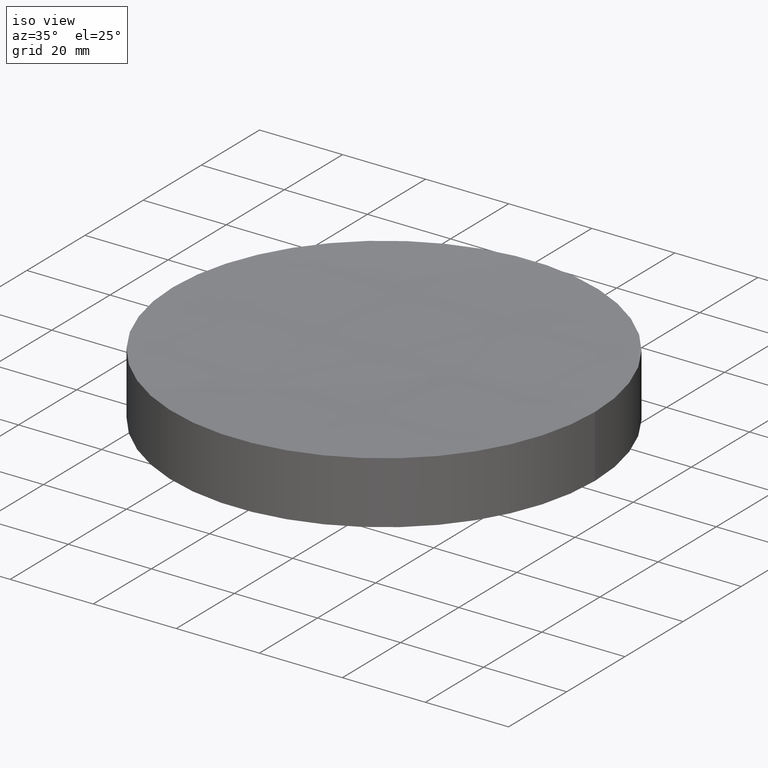
[diagram: clean part render]
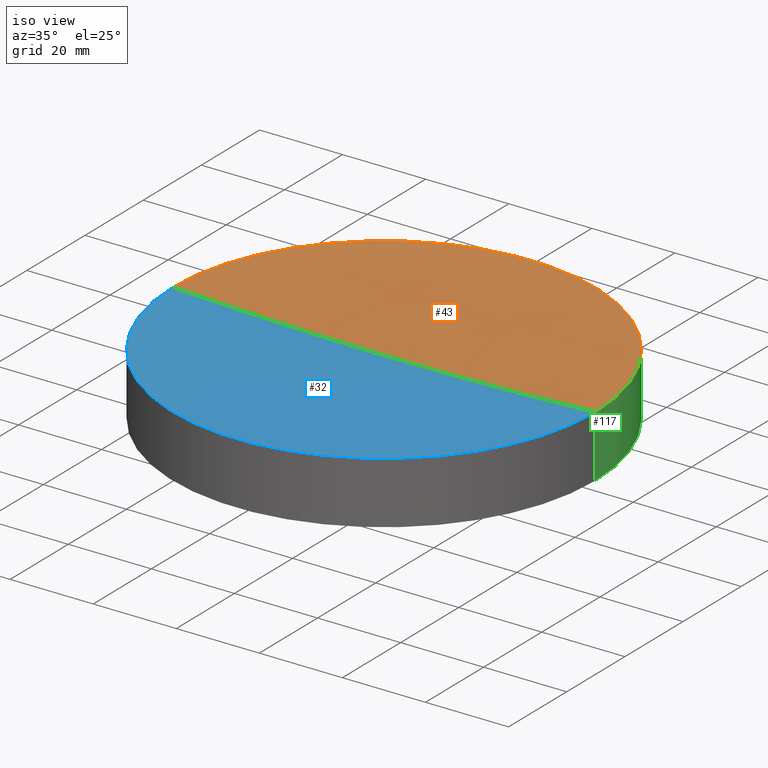
[diagram: same view with three faces highlighted in distinct colors, each labeled with its STEP entity id]
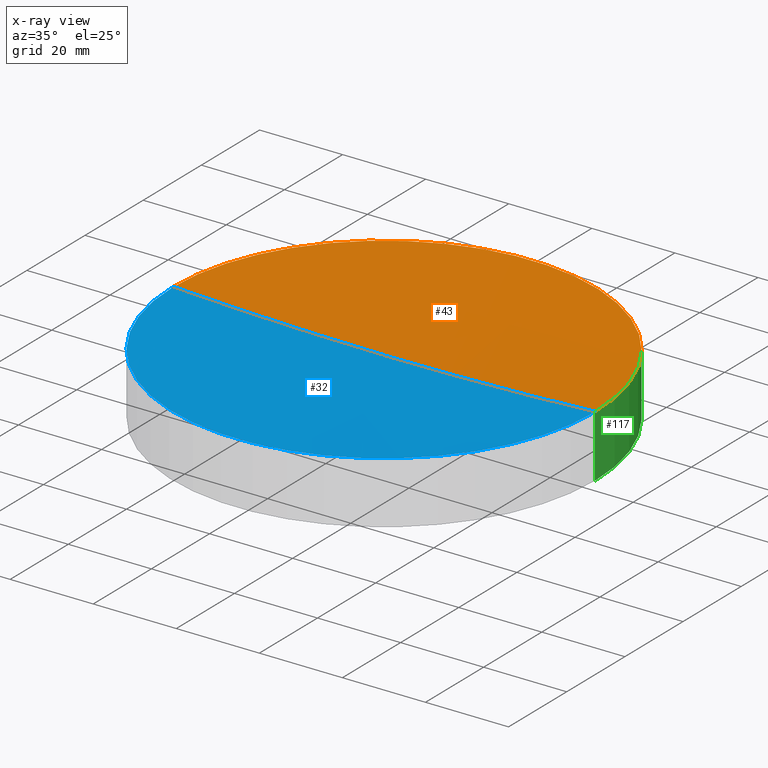
[diagram: x-ray of the same camera — body ghosted, the three highlighted faces saturated]
A machine part, iso view with three faces highlighted in distinct colors.
The next image is the same camera in x-ray (body ghosted, the three faces saturated) — at least one of them is partly hidden behind the body in this view.
Their STEP definitions:

[orange] entity #43 — the highlighted spherical surface has radius 1000 mm.
#9 = VERTEX_POINT ( 'NONE', #103 ) ;
#24 = ORIENTED_EDGE ( 'NONE', *, *, #34, .F. ) ;
#25 = DIRECTION ( 'NONE',  ( 1.000000000000000000, 0.000000000000000000, 0.000000000000000000 ) ) ;
#27 = CARTESIAN_POINT ( 'NONE',  ( 1.249000902703301108E-13, 0.000000000000000000, 15.00000000000001421 ) ) ;
#29 = DIRECTION ( 'NONE',  ( 0.000000000000000000, 0.000000000000000000, 1.000000000000000000 ) ) ;
#31 = CARTESIAN_POINT ( 'NONE',  ( 50.80000000000143956, 6.221205739668731224E-15, 15.00000000000001421 ) ) ;
#34 = EDGE_CURVE ( 'NONE', #9, #132, #112, .T. ) ;
#43 = ADVANCED_FACE ( 'NONE', ( #88 ), #178, .F. ) ;
#48 = AXIS2_PLACEMENT_3D ( 'NONE', #158, #135, #73 ) ;
#70 = ORIENTED_EDGE ( 'NONE', *, *, #188, .F. ) ;
#72 = ORIENTED_EDGE ( 'NONE', *, *, #140, .T. ) ;
#73 = DIRECTION ( 'NONE',  ( 1.000000000000000000, 0.000000000000000000, 0.000000000000000000 ) ) ;
#80 = AXIS2_PLACEMENT_3D ( 'NONE', #27, #195, #25 ) ;
#88 = FACE_OUTER_BOUND ( 'NONE', #179, .T. ) ;
#92 = DIRECTION ( 'NONE',  ( 0.000000000000000000, 1.000000000000000000, -0.000000000000000000 ) ) ;
#96 = CARTESIAN_POINT ( 'NONE',  ( 1.861324302276977606E-13, 0.000000000000000000, 13.70884646126968676 ) ) ;
#103 = CARTESIAN_POINT ( 'NONE',  ( -50.80000000000119087, 0.000000000000000000, 15.00000000000001421 ) ) ;
#104 = CARTESIAN_POINT ( 'NONE',  ( 1.249000902703301108E-13, 0.000000000000000000, 1013.708846461269559 ) ) ;
#107 = CIRCLE ( 'NONE', #126, 999.9999999999997726 ) ;
#112 = CIRCLE ( 'NONE', #80, 50.80000000000131877 ) ;
#113 = AXIS2_PLACEMENT_3D ( 'NONE', #183, #167, #199 ) ;
#118 = VERTEX_POINT ( 'NONE', #96 ) ;
#126 = AXIS2_PLACEMENT_3D ( 'NONE', #104, #92, #29 ) ;
#132 = VERTEX_POINT ( 'NONE', #31 ) ;
#135 = DIRECTION ( 'NONE',  ( 0.000000000000000000, -1.000000000000000000, -0.000000000000000000 ) ) ;
#140 = EDGE_CURVE ( 'NONE', #9, #118, #201, .T. ) ;
#158 = CARTESIAN_POINT ( 'NONE',  ( 1.249000902703301108E-13, 0.000000000000000000, 1013.708846461269559 ) ) ;
#167 = DIRECTION ( 'NONE',  ( 1.224646799147353207E-16, -1.000000000000000000, 0.000000000000000000 ) ) ;
#178 = SPHERICAL_SURFACE ( 'NONE', #48, 999.9999999999998863 ) ;
#179 = EDGE_LOOP ( 'NONE', ( #24, #72, #70 ) ) ;
#183 = CARTESIAN_POINT ( 'NONE',  ( 1.249000902703301108E-13, 0.000000000000000000, 1013.708846461269559 ) ) ;
#188 = EDGE_CURVE ( 'NONE', #132, #118, #107, .T. ) ;
#195 = DIRECTION ( 'NONE',  ( -0.000000000000000000, -0.000000000000000000, -1.000000000000000000 ) ) ;
#199 = DIRECTION ( 'NONE',  ( 1.000000000000000000, 1.224646799147353207E-16, 0.000000000000000000 ) ) ;
#201 = CIRCLE ( 'NONE', #113, 999.9999999999998863 ) ;

[blue] entity #32 — the highlighted spherical surface has radius 1000 mm.
#9 = VERTEX_POINT ( 'NONE', #103 ) ;
#10 = ORIENTED_EDGE ( 'NONE', *, *, #140, .F. ) ;
#11 = CARTESIAN_POINT ( 'NONE',  ( 1.249000902703301108E-13, 0.000000000000000000, 15.00000000000001421 ) ) ;
#29 = DIRECTION ( 'NONE',  ( 0.000000000000000000, 0.000000000000000000, 1.000000000000000000 ) ) ;
#31 = CARTESIAN_POINT ( 'NONE',  ( 50.80000000000143956, 6.221205739668731224E-15, 15.00000000000001421 ) ) ;
#32 = ADVANCED_FACE ( 'NONE', ( #177 ), #181, .F. ) ;
#42 = ORIENTED_EDGE ( 'NONE', *, *, #188, .T. ) ;
#46 = CARTESIAN_POINT ( 'NONE',  ( 1.249000902703301108E-13, 0.000000000000000000, 1013.708846461269559 ) ) ;
#47 = DIRECTION ( 'NONE',  ( -0.000000000000000000, -0.000000000000000000, -1.000000000000000000 ) ) ;
#55 = CIRCLE ( 'NONE', #162, 50.80000000000131877 ) ;
#92 = DIRECTION ( 'NONE',  ( 0.000000000000000000, 1.000000000000000000, -0.000000000000000000 ) ) ;
#96 = CARTESIAN_POINT ( 'NONE',  ( 1.861324302276977606E-13, 0.000000000000000000, 13.70884646126968676 ) ) ;
#103 = CARTESIAN_POINT ( 'NONE',  ( -50.80000000000119087, 0.000000000000000000, 15.00000000000001421 ) ) ;
#104 = CARTESIAN_POINT ( 'NONE',  ( 1.249000902703301108E-13, 0.000000000000000000, 1013.708846461269559 ) ) ;
#107 = CIRCLE ( 'NONE', #126, 999.9999999999997726 ) ;
#113 = AXIS2_PLACEMENT_3D ( 'NONE', #183, #167, #199 ) ;
#116 = ORIENTED_EDGE ( 'NONE', *, *, #168, .F. ) ;
#118 = VERTEX_POINT ( 'NONE', #96 ) ;
#120 = DIRECTION ( 'NONE',  ( 1.000000000000000000, 0.000000000000000000, 0.000000000000000000 ) ) ;
#126 = AXIS2_PLACEMENT_3D ( 'NONE', #104, #92, #29 ) ;
#132 = VERTEX_POINT ( 'NONE', #31 ) ;
#140 = EDGE_CURVE ( 'NONE', #9, #118, #201, .T. ) ;
#144 = DIRECTION ( 'NONE',  ( 0.000000000000000000, -1.000000000000000000, -0.000000000000000000 ) ) ;
#145 = AXIS2_PLACEMENT_3D ( 'NONE', #46, #144, #120 ) ;
#162 = AXIS2_PLACEMENT_3D ( 'NONE', #11, #47, #198 ) ;
#167 = DIRECTION ( 'NONE',  ( 1.224646799147353207E-16, -1.000000000000000000, 0.000000000000000000 ) ) ;
#168 = EDGE_CURVE ( 'NONE', #132, #9, #55, .T. ) ;
#176 = EDGE_LOOP ( 'NONE', ( #10, #116, #42 ) ) ;
#177 = FACE_OUTER_BOUND ( 'NONE', #176, .T. ) ;
#181 = SPHERICAL_SURFACE ( 'NONE', #145, 999.9999999999998863 ) ;
#183 = CARTESIAN_POINT ( 'NONE',  ( 1.249000902703301108E-13, 0.000000000000000000, 1013.708846461269559 ) ) ;
#188 = EDGE_CURVE ( 'NONE', #132, #118, #107, .T. ) ;
#198 = DIRECTION ( 'NONE',  ( 1.000000000000000000, 0.000000000000000000, 0.000000000000000000 ) ) ;
#199 = DIRECTION ( 'NONE',  ( 1.000000000000000000, 1.224646799147353207E-16, 0.000000000000000000 ) ) ;
#201 = CIRCLE ( 'NONE', #113, 999.9999999999998863 ) ;

[green] entity #117 — the highlighted cylindrical surface (partial cylindrical patch) has radius 50.8 mm, axis along (-0, -0, -1).
#8 = ORIENTED_EDGE ( 'NONE', *, *, #50, .T. ) ;
#9 = VERTEX_POINT ( 'NONE', #103 ) ;
#14 = CYLINDRICAL_SURFACE ( 'NONE', #78, 50.79999999999999716 ) ;
#16 = CARTESIAN_POINT ( 'NONE',  ( -50.79999999999999716, 0.000000000000000000, 15.00000000000000000 ) ) ;
#25 = DIRECTION ( 'NONE',  ( 1.000000000000000000, 0.000000000000000000, 0.000000000000000000 ) ) ;
#27 = CARTESIAN_POINT ( 'NONE',  ( 1.249000902703301108E-13, 0.000000000000000000, 15.00000000000001421 ) ) ;
#28 = ORIENTED_EDGE ( 'NONE', *, *, #84, .T. ) ;
#31 = CARTESIAN_POINT ( 'NONE',  ( 50.80000000000143956, 6.221205739668731224E-15, 15.00000000000001421 ) ) ;
#33 = CARTESIAN_POINT ( 'NONE',  ( 0.000000000000000000, 0.000000000000000000, 0.000000000000000000 ) ) ;
#34 = EDGE_CURVE ( 'NONE', #9, #132, #112, .T. ) ;
#41 = ORIENTED_EDGE ( 'NONE', *, *, #34, .T. ) ;
#50 = EDGE_CURVE ( 'NONE', #132, #133, #76, .T. ) ;
#61 = ORIENTED_EDGE ( 'NONE', *, *, #67, .F. ) ;
#64 = DIRECTION ( 'NONE',  ( -1.000000000000000000, 0.000000000000000000, 0.000000000000000000 ) ) ;
#67 = EDGE_CURVE ( 'NONE', #9, #160, #94, .T. ) ;
#75 = EDGE_LOOP ( 'NONE', ( #41, #8, #28, #61 ) ) ;
#76 = LINE ( 'NONE', #134, #193 ) ;
#78 = AXIS2_PLACEMENT_3D ( 'NONE', #108, #169, #64 ) ;
#80 = AXIS2_PLACEMENT_3D ( 'NONE', #27, #195, #25 ) ;
#84 = EDGE_CURVE ( 'NONE', #133, #160, #172, .T. ) ;
#94 = LINE ( 'NONE', #16, #109 ) ;
#97 = DIRECTION ( 'NONE',  ( -0.000000000000000000, -0.000000000000000000, -1.000000000000000000 ) ) ;
#103 = CARTESIAN_POINT ( 'NONE',  ( -50.80000000000119087, 0.000000000000000000, 15.00000000000001421 ) ) ;
#106 = CARTESIAN_POINT ( 'NONE',  ( 50.79999999999999716, 6.221205739668553730E-15, 0.000000000000000000 ) ) ;
#108 = CARTESIAN_POINT ( 'NONE',  ( 0.000000000000000000, 0.000000000000000000, 15.00000000000000000 ) ) ;
#109 = VECTOR ( 'NONE', #150, 1000.000000000000000 ) ;
#112 = CIRCLE ( 'NONE', #80, 50.80000000000131877 ) ;
#117 = ADVANCED_FACE ( 'NONE', ( #200 ), #14, .T. ) ;
#122 = DIRECTION ( 'NONE',  ( 1.000000000000000000, 0.000000000000000000, 0.000000000000000000 ) ) ;
#132 = VERTEX_POINT ( 'NONE', #31 ) ;
#133 = VERTEX_POINT ( 'NONE', #106 ) ;
#134 = CARTESIAN_POINT ( 'NONE',  ( 50.79999999999999716, 6.221205739668553730E-15, 15.00000000000000000 ) ) ;
#139 = DIRECTION ( 'NONE',  ( 0.000000000000000000, 0.000000000000000000, 1.000000000000000000 ) ) ;
#146 = CARTESIAN_POINT ( 'NONE',  ( -50.79999999999999716, 0.000000000000000000, 0.000000000000000000 ) ) ;
#150 = DIRECTION ( 'NONE',  ( -0.000000000000000000, -0.000000000000000000, -1.000000000000000000 ) ) ;
#154 = AXIS2_PLACEMENT_3D ( 'NONE', #33, #139, #122 ) ;
#160 = VERTEX_POINT ( 'NONE', #146 ) ;
#169 = DIRECTION ( 'NONE',  ( -0.000000000000000000, -0.000000000000000000, -1.000000000000000000 ) ) ;
#172 = CIRCLE ( 'NONE', #154, 50.79999999999999716 ) ;
#193 = VECTOR ( 'NONE', #97, 1000.000000000000000 ) ;
#195 = DIRECTION ( 'NONE',  ( -0.000000000000000000, -0.000000000000000000, -1.000000000000000000 ) ) ;
#200 = FACE_OUTER_BOUND ( 'NONE', #75, .T. ) ;